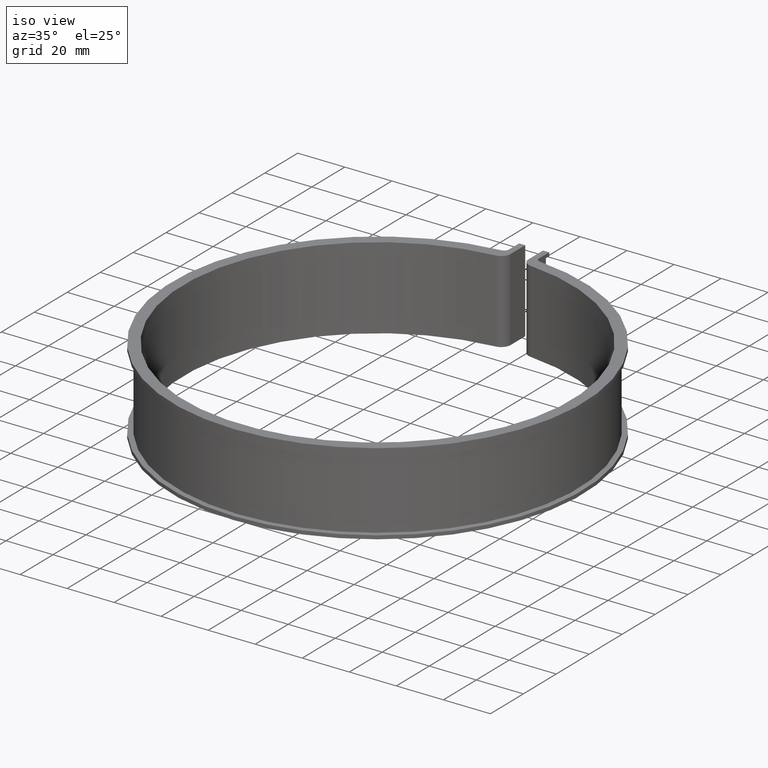
[diagram: clean part render]
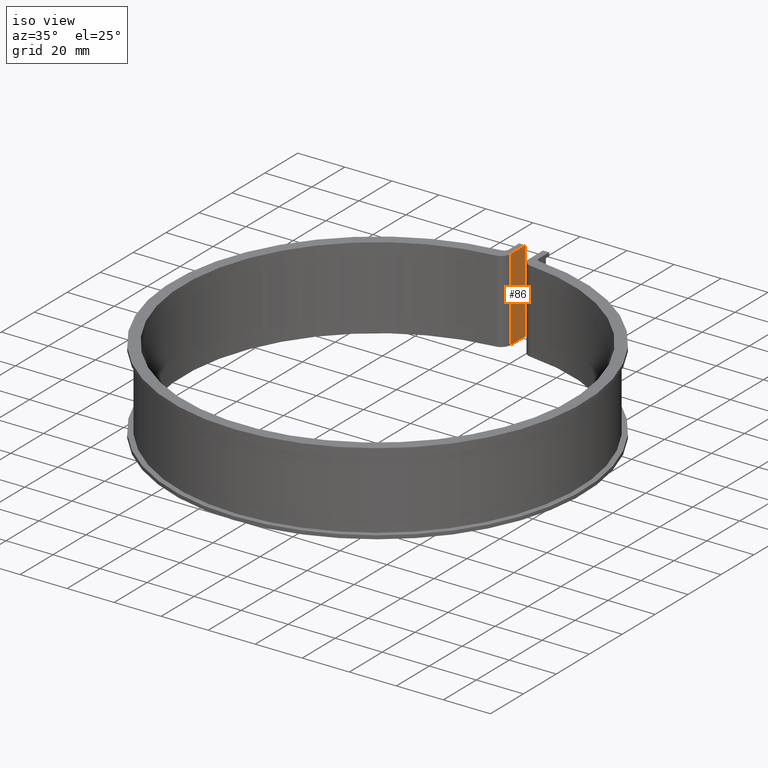
[diagram: same view with one face highlighted and labeled with its STEP entity id]
A machine part, iso view. The second image highlights one B-rep face of the part: STEP entity #86.
In plain terms, the highlighted planar face has unit normal (1, -0, 0).
Its self-contained STEP definition (entity closure, byte-faithful):
#86 = ADVANCED_FACE( '', ( #124 ), #125, .T. );
#124 = FACE_OUTER_BOUND( '', #176, .T. );
#125 = PLANE( '', #177 );
#176 = EDGE_LOOP( '', ( #307, #308, #309, #310 ) );
#177 = AXIS2_PLACEMENT_3D( '', #311, #312, #313 );
#307 = ORIENTED_EDGE( '', *, *, #436, .T. );
#308 = ORIENTED_EDGE( '', *, *, #466, .F. );
#309 = ORIENTED_EDGE( '', *, *, #473, .F. );
#310 = ORIENTED_EDGE( '', *, *, #476, .T. );
#311 = CARTESIAN_POINT( '', ( -3.79999999999999, 86.2480144698996, -32.0000000000000 ) );
#312 = DIRECTION( '', ( 1.00000000000000, -8.32667268468867E-017, 0.000000000000000 ) );
#313 = DIRECTION( '', ( -8.32667268468867E-017, -1.00000000000000, 0.000000000000000 ) );
#436 = EDGE_CURVE( '', #517, #515, #518, .T. );
#466 = EDGE_CURVE( '', #570, #515, #571, .T. );
#473 = EDGE_CURVE( '', #580, #570, #581, .T. );
#476 = EDGE_CURVE( '', #580, #517, #585, .T. );
#515 = VERTEX_POINT( '', #640 );
#517 = VERTEX_POINT( '', #643 );
#518 = LINE( '', #644, #645 );
#570 = VERTEX_POINT( '', #719 );
#571 = LINE( '', #720, #721 );
#580 = VERTEX_POINT( '', #732 );
#581 = LINE( '', #733, #734 );
#585 = LINE( '', #739, #740 );
#640 = CARTESIAN_POINT( '', ( -3.80000000000000, 95.1000000000000, 1.50000000000000 ) );
#643 = CARTESIAN_POINT( '', ( -3.80000000000000, 95.1000000000000, -33.5000000000000 ) );
#644 = CARTESIAN_POINT( '', ( -3.79999999999998, 95.1000000000001, -32.0000000000000 ) );
#645 = VECTOR( '', #800, 1000.00000000000 );
#719 = CARTESIAN_POINT( '', ( -3.80000000000000, 86.2480144698995, 1.50000000000000 ) );
#720 = CARTESIAN_POINT( '', ( -3.80000000000000, 86.2480144698995, 1.50000000000000 ) );
#721 = VECTOR( '', #844, 1000.00000000000 );
#732 = CARTESIAN_POINT( '', ( -3.80000000000000, 86.2480144698995, -33.5000000000000 ) );
#733 = CARTESIAN_POINT( '', ( -3.79999999999999, 86.2480144698995, -32.0000000000000 ) );
#734 = VECTOR( '', #859, 1000.00000000000 );
#739 = CARTESIAN_POINT( '', ( -3.80000000000000, 86.2480144698995, -33.5000000000000 ) );
#740 = VECTOR( '', #864, 1000.00000000000 );
#800 = DIRECTION( '', ( 0.000000000000000, 0.000000000000000, 1.00000000000000 ) );
#844 = DIRECTION( '', ( 6.10365667473321E-017, 1.00000000000000, 0.000000000000000 ) );
#859 = DIRECTION( '', ( 0.000000000000000, 0.000000000000000, 1.00000000000000 ) );
#864 = DIRECTION( '', ( 6.10365667473321E-017, 1.00000000000000, 0.000000000000000 ) );